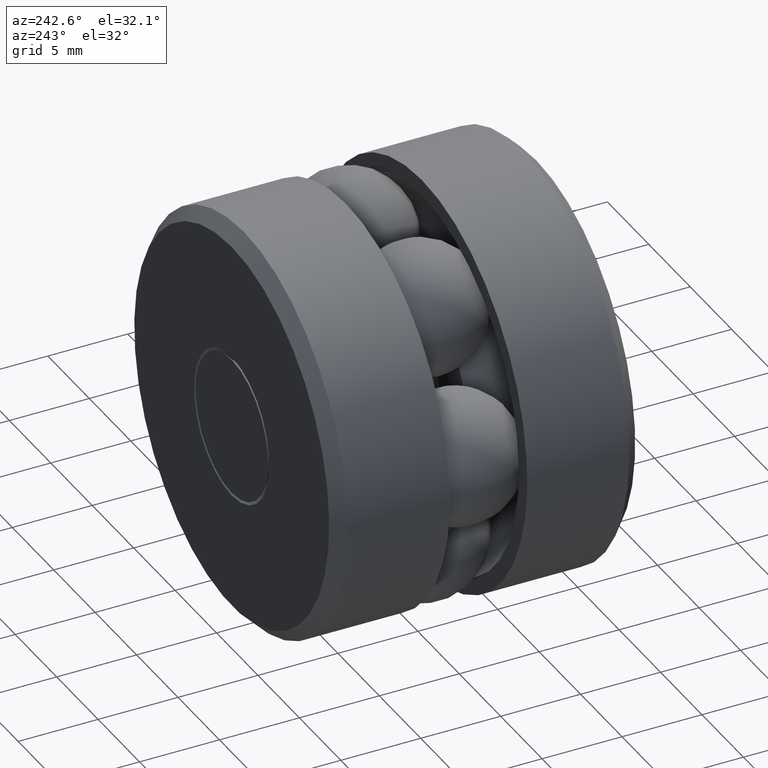
[diagram: clean part render]
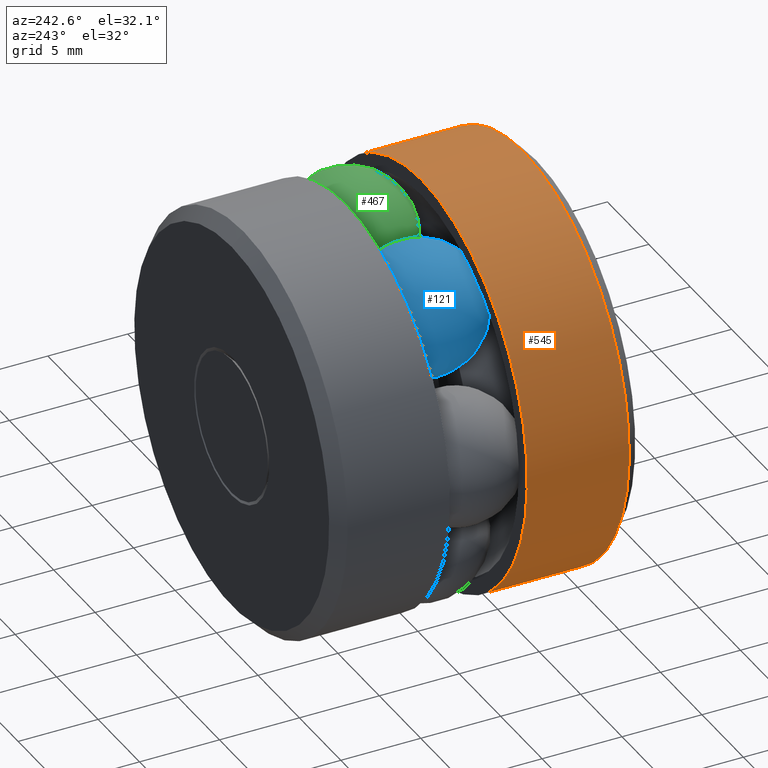
[diagram: same view with three faces highlighted in distinct colors, each labeled with its STEP entity id]
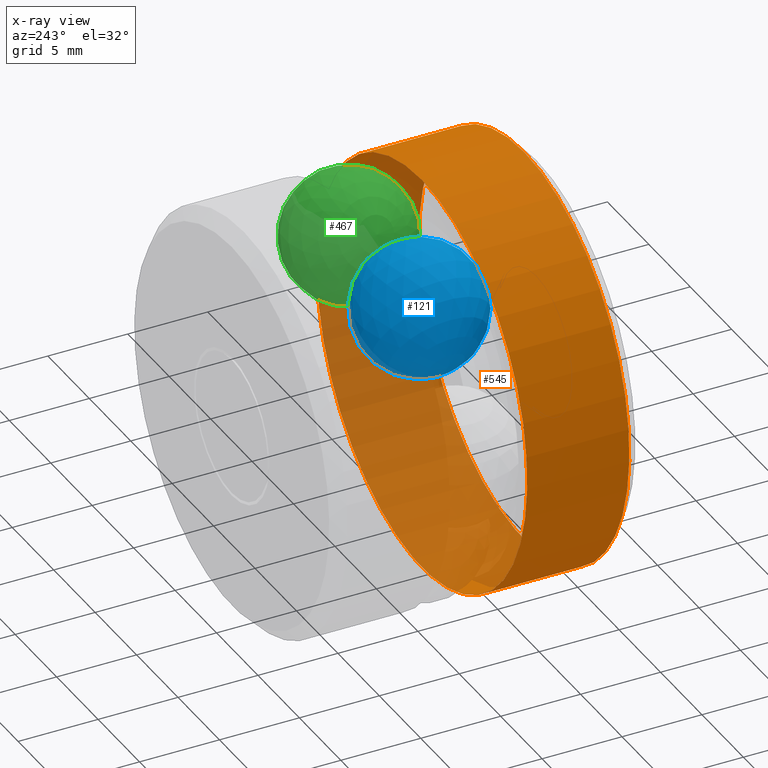
[diagram: x-ray of the same camera — body ghosted, the three highlighted faces saturated]
A machine part, auxiliary view with three faces highlighted in distinct colors.
The next image is the same camera in x-ray (body ghosted, the three faces saturated) — at least one of them is partly hidden behind the body in this view.
Their STEP definitions:

[orange] entity #545 — the highlighted cylindrical surface (bore or boss wall) has radius 12.7 mm, axis along (-0, 1, -0).
#17 = DIRECTION ( 'NONE',  ( -0.0000000000000000000, 1.000000000000000000, -0.0000000000000000000 ) ) ;
#19 = VERTEX_POINT ( 'NONE', #271 ) ;
#28 = CARTESIAN_POINT ( 'NONE',  ( 0.0000000000000000000, 0.0000000000000000000, 0.0000000000000000000 ) ) ;
#48 = EDGE_LOOP ( 'NONE', ( #329 ) ) ;
#115 = CIRCLE ( 'NONE', #202, 0.5000000000000000000 ) ;
#136 = AXIS2_PLACEMENT_3D ( 'NONE', #191, #189, #181 ) ;
#174 = DIRECTION ( 'NONE',  ( 0.0000000000000000000, 0.0000000000000000000, 1.000000000000000000 ) ) ;
#181 = DIRECTION ( 'NONE',  ( 0.0000000000000000000, 0.0000000000000000000, 1.000000000000000000 ) ) ;
#185 = ORIENTED_EDGE ( 'NONE', *, *, #456, .T. ) ;
#189 = DIRECTION ( 'NONE',  ( -0.0000000000000000000, 1.000000000000000000, -0.0000000000000000000 ) ) ;
#190 = FACE_OUTER_BOUND ( 'NONE', #48, .T. ) ;
#191 = CARTESIAN_POINT ( 'NONE',  ( 0.0000000000000000000, 0.03000000000000017600, 0.0000000000000000000 ) ) ;
#202 = AXIS2_PLACEMENT_3D ( 'NONE', #463, #460, #174 ) ;
#235 = EDGE_LOOP ( 'NONE', ( #185 ) ) ;
#267 = CARTESIAN_POINT ( 'NONE',  ( 0.0000000000000000000, 0.03000000000000017600, 0.5000000000000000000 ) ) ;
#271 = CARTESIAN_POINT ( 'NONE',  ( 0.0000000000000000000, 0.2814000000000000400, 0.5000000000000000000 ) ) ;
#329 = ORIENTED_EDGE ( 'NONE', *, *, #430, .F. ) ;
#417 = FACE_OUTER_BOUND ( 'NONE', #235, .T. ) ;
#430 = EDGE_CURVE ( 'NONE', #19, #19, #115, .T. ) ;
#446 = DIRECTION ( 'NONE',  ( 0.0000000000000000000, 0.0000000000000000000, 1.000000000000000000 ) ) ;
#456 = EDGE_CURVE ( 'NONE', #461, #461, #549, .T. ) ;
#460 = DIRECTION ( 'NONE',  ( -0.0000000000000000000, 1.000000000000000000, -0.0000000000000000000 ) ) ;
#461 = VERTEX_POINT ( 'NONE', #267 ) ;
#463 = CARTESIAN_POINT ( 'NONE',  ( 0.0000000000000000000, 0.2814000000000000400, 0.0000000000000000000 ) ) ;
#508 = CYLINDRICAL_SURFACE ( 'NONE', #537, 0.5000000000000000000 ) ;
#537 = AXIS2_PLACEMENT_3D ( 'NONE', #28, #17, #446 ) ;
#545 = ADVANCED_FACE ( 'NONE', ( #417, #190 ), #508, .T. ) ;
#549 = CIRCLE ( 'NONE', #136, 0.5000000000000000000 ) ;

[blue] entity #121 — the highlighted spherical surface has radius 3.9624 mm.
#100 = DIRECTION ( 'NONE',  ( 0.4999999999999980600, 0.0000000000000000000, -0.8660254037844398200 ) ) ;
#121 = ADVANCED_FACE ( 'NONE', ( ), #349, .T. ) ;
#154 = DIRECTION ( 'NONE',  ( -0.8660254037844398200, 0.0000000000000000000, -0.4999999999999980600 ) ) ;
#316 = CARTESIAN_POINT ( 'NONE',  ( -0.1674999999999992600, 0.3750000000000001100, 0.2901185102677872300 ) ) ;
#349 = SPHERICAL_SURFACE ( 'NONE', #449, 0.1560000000000000000 ) ;
#449 = AXIS2_PLACEMENT_3D ( 'NONE', #316, #154, #100 ) ;

[green] entity #467 — the highlighted spherical surface has radius 3.9624 mm.
#168 = CARTESIAN_POINT ( 'NONE',  ( 0.1675000000000013100, 0.3750000000000001100, 0.2901185102677861800 ) ) ;
#218 = SPHERICAL_SURFACE ( 'NONE', #340, 0.1560000000000000000 ) ;
#295 = DIRECTION ( 'NONE',  ( -0.5000000000000040000, 0.0000000000000000000, -0.8660254037844363800 ) ) ;
#298 = DIRECTION ( 'NONE',  ( -0.8660254037844363800, 0.0000000000000000000, 0.5000000000000040000 ) ) ;
#340 = AXIS2_PLACEMENT_3D ( 'NONE', #168, #298, #295 ) ;
#467 = ADVANCED_FACE ( 'NONE', ( ), #218, .T. ) ;